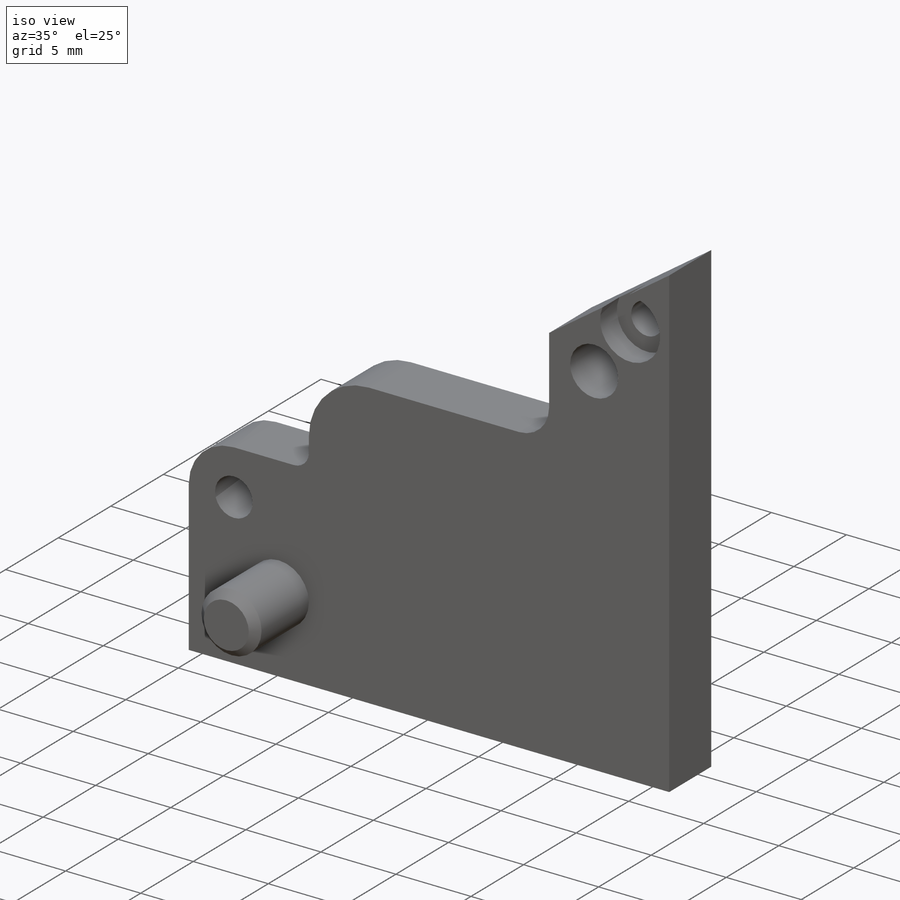
[diagram: iso view]
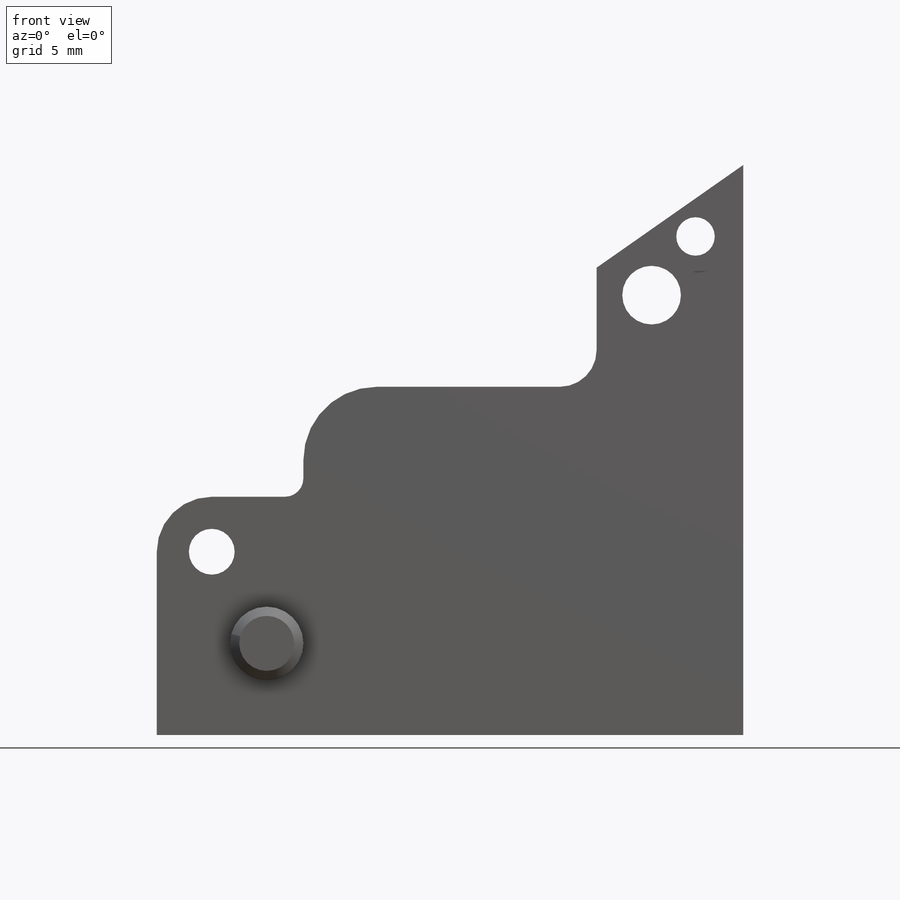
[diagram: front view]
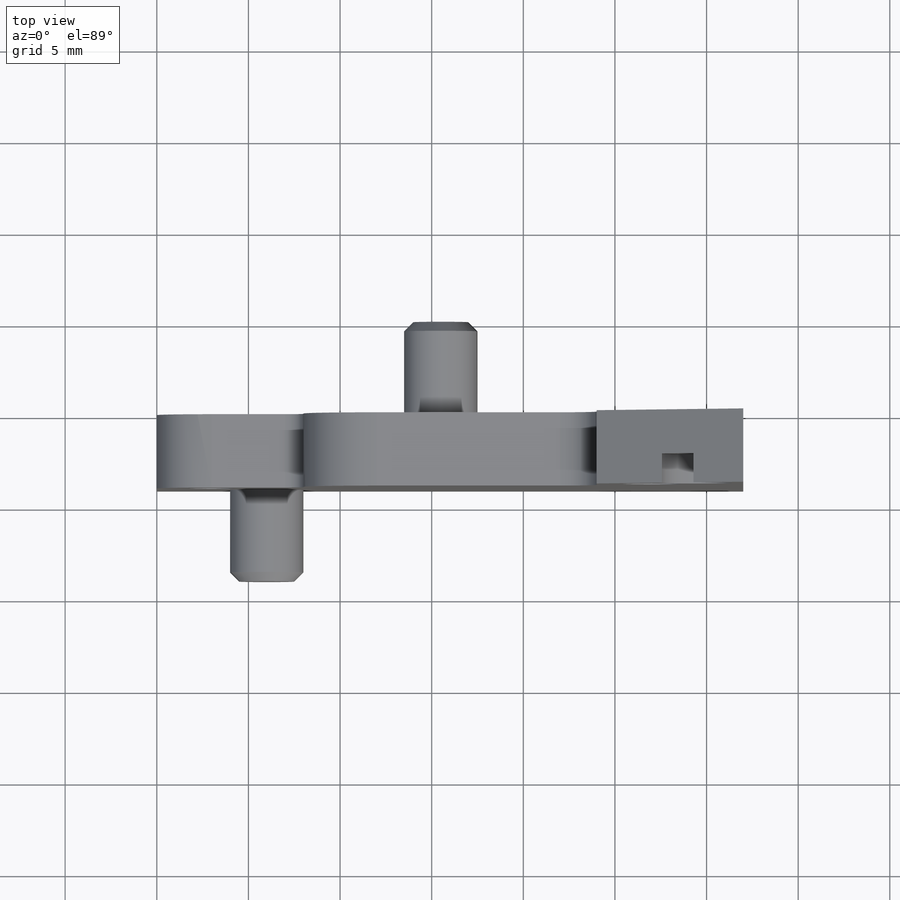
[diagram: top view]
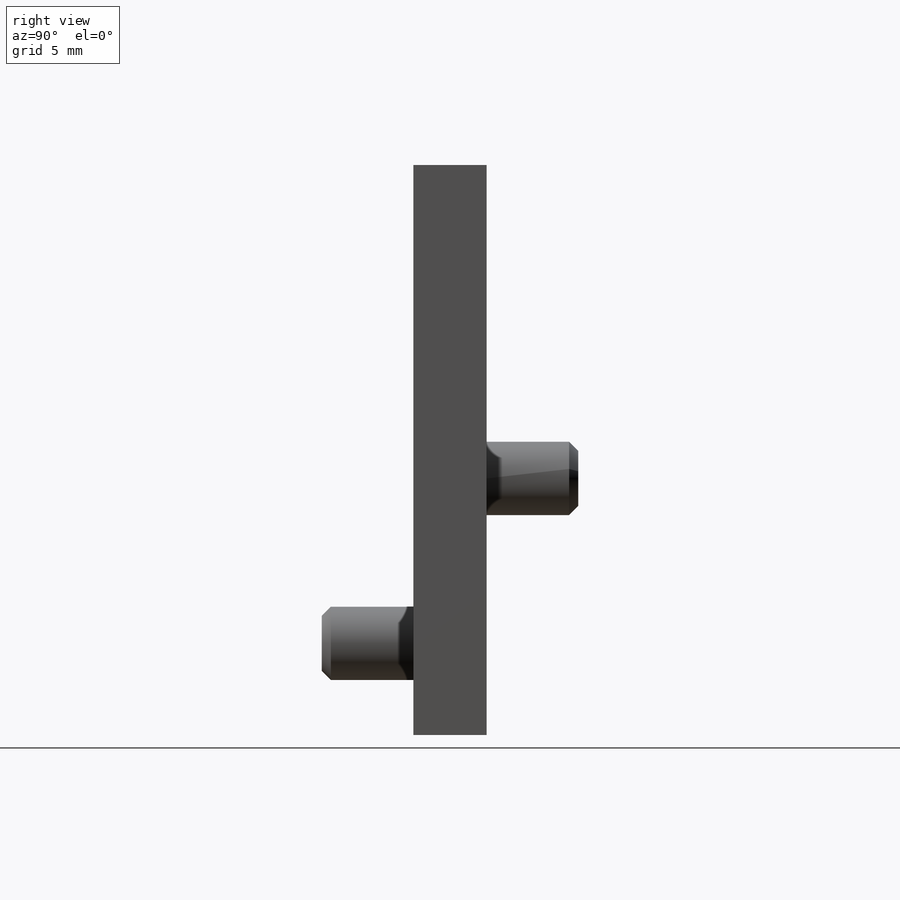
[diagram: right view]
SOLIDWORKS PART (.sldprt)
format: sldprt  version: not decoded by parser v0  size: 304,640 bytes
history: native  units: mm
features: sketch x13, hole x4, fillet x4, plane x3, cut_extrude x2, revolve x2, material x1, extrude x1, chamfer x1 (+13 scaffold rows collapsed)
feature tree (44):
  scaffold x13  (default folders/planes/origin — collapsed)
  material  "Material <not specified>"
  plane  "Plane1"
  sketch  "Sketch1"
  extrude  "Boss-Extrude1"  Depth=4mm
  sketch  "Sketch2"
  cut_extrude  "Cut-Extrude1"  Depth=4mm
  sketch  "Sketch3"
  cut_extrude  "Cut-Extrude2"  Depth=4mm
  plane  "Plane2"
  sketch  "Sketch4"
  revolve  "Revolve1"  Angle=360deg
  plane  "Plane3"  Offset=14mm
  sketch  "Sketch5"
  revolve  "Revolve2"  Angle=360deg
  hole  "Ø3.2 (3.2) Diameter Hole1"  Diameter=3.2mm Depth=9mm
  sketch  "Sketch7"
  sketch  "Sketch6"  dims[hole-wizard template sketch: 60 standard entries collapsed; hole parameters kept: c18.Thru Hole Depth=9.0mm]
  hole  "Ø2.5 (2.5) Diameter Hole1"  Diameter=2.5mm Depth=9mm
  sketch  "Sketch9"
  sketch  "Sketch8"  dims[hole-wizard template sketch: 60 standard entries collapsed; hole parameters kept: c18.Thru Hole Depth=9.0mm]
  hole  "M4x0.7 Tapped Hole1"  Diameter=2.1mm Depth=9mm
  sketch  "Sketch11"
  sketch  "Sketch10"  dims[hole-wizard template sketch: 41 standard entries collapsed; hole parameters kept: c12.Thru Tap Drill Dia.=2.1mm c12.Thru Tap Drill Depth=9.0mm c12.Thread Major Dia.=4.0mm c12.Thread Depth=1.6mm]
  hole  "Ø2.5 (2.5) Diameter Hole2"  Diameter=2.5mm Depth=7.5mm
  sketch  "Sketch13"
  sketch  "Sketch12"  dims[hole-wizard template sketch: 47 standard entries collapsed; hole parameters kept: c15.Hole Depth=7.5mm c15.D3=~14.816244mm c15.Drill Angle=118.0deg]
  chamfer  "Chamfer1"  Distance=0.5mm Angle=45deg
  fillet  "Fillet1"  Radius=1mm
  fillet  "Fillet2"  Radius=2mm
  fillet  "Fillet3"  Radius=3mm
  fillet  "Fillet4"  Radius=4mm
decode coverage: 18 of 27 modeling features carry decoded parameters
note: ~ marks probable driven/reference dimensions
summary: Diameter pulled from absorbed wizard sketch
note: suppression state not decoded; provenance and decode notes live in map.json
